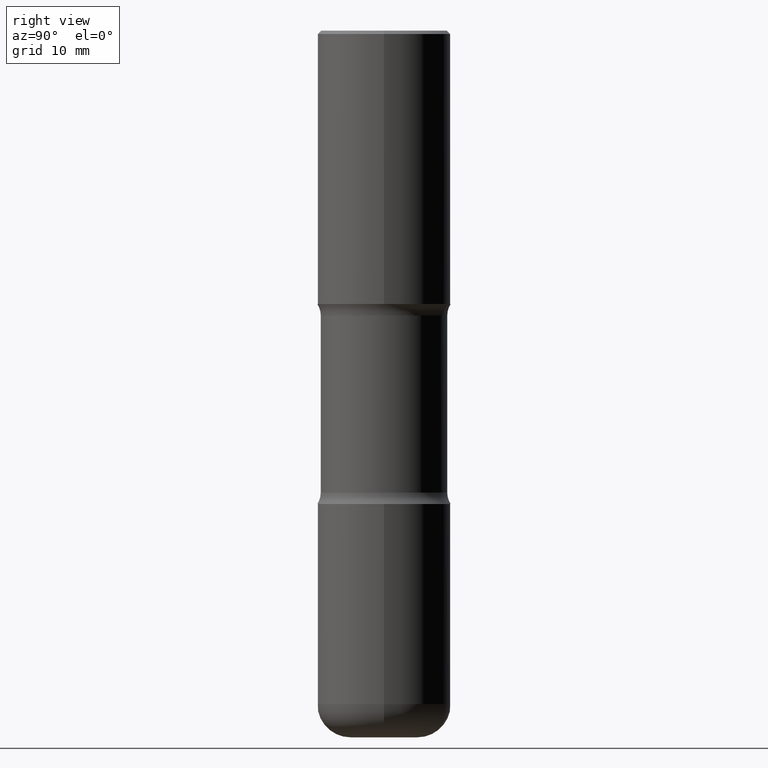
[diagram: clean part render]
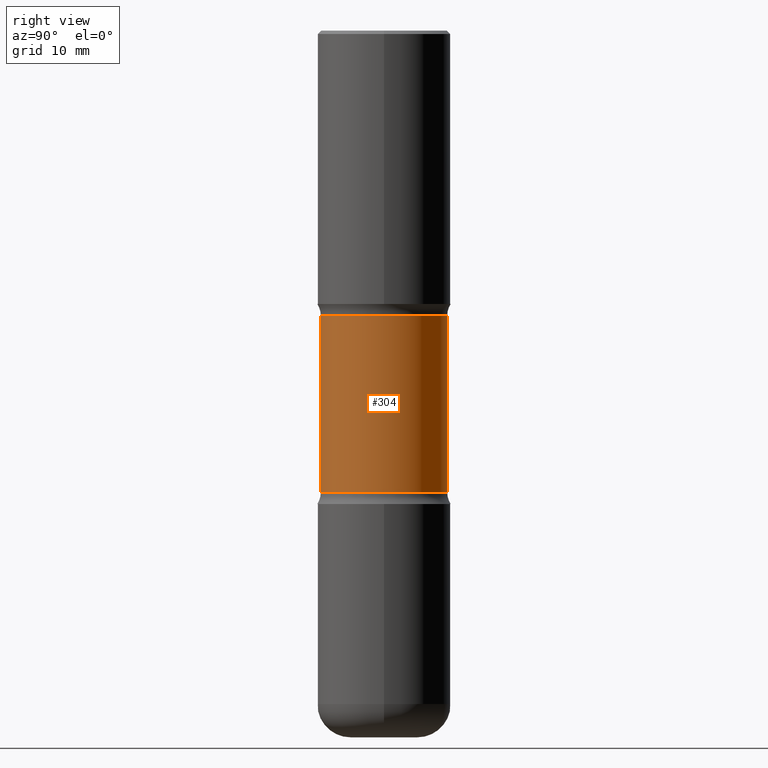
[diagram: same view with one face highlighted and labeled with its STEP entity id]
A machine part, right view. The second image highlights one B-rep face of the part: STEP entity #304.
In plain terms, the highlighted cylindrical surface (partial cylindrical patch) has radius 9.4869 mm, axis along (0, -0, -1).
Its self-contained STEP definition (entity closure, byte-faithful):
#12 = EDGE_LOOP ( 'NONE', ( #240, #161, #22, #397 ) ) ;
#22 = ORIENTED_EDGE ( 'NONE', *, *, #38, .F. ) ;
#27 = DIRECTION ( 'NONE',  ( 2.497382066111305685E-29, -3.417138595909611452E-15, -1.000000000000000000 ) ) ;
#38 = EDGE_CURVE ( 'NONE', #111, #277, #447, .T. ) ;
#44 = CARTESIAN_POINT ( 'NONE',  ( 2.608136560115861621E-15, 0.3734999999999941700, -1.682231930840100809 ) ) ;
#66 = LINE ( 'NONE', #378, #390 ) ;
#90 = EDGE_CURVE ( 'NONE', #93, #111, #372, .T. ) ;
#93 = VERTEX_POINT ( 'NONE', #44 ) ;
#105 = VECTOR ( 'NONE', #389, 39.37007874015748143 ) ;
#110 = CARTESIAN_POINT ( 'NONE',  ( -2.631687031945092476E-15, -0.3735000000000094911, -2.727068069159900521 ) ) ;
#111 = VERTEX_POINT ( 'NONE', #294 ) ;
#150 = DIRECTION ( 'NONE',  ( 2.497382066111305685E-29, -3.417138595909611452E-15, -1.000000000000000000 ) ) ;
#161 = ORIENTED_EDGE ( 'NONE', *, *, #445, .T. ) ;
#205 = DIRECTION ( 'NONE',  ( 2.497382066111305685E-29, -3.417138595909611452E-15, -1.000000000000000000 ) ) ;
#218 = CARTESIAN_POINT ( 'NONE',  ( 2.608136560115922758E-15, 0.3734999999999855103, -4.173200000000001353 ) ) ;
#229 = CARTESIAN_POINT ( 'NONE',  ( 1.027696689415007474E-28, -1.446820562349780459E-14, -4.173200000000000465 ) ) ;
#230 = AXIS2_PLACEMENT_3D ( 'NONE', #229, #150, #539 ) ;
#240 = ORIENTED_EDGE ( 'NONE', *, *, #549, .T. ) ;
#277 = VERTEX_POINT ( 'NONE', #110 ) ;
#284 = CARTESIAN_POINT ( 'NONE',  ( -2.631687031945121663E-15, -0.3735000000000060494, -1.682231930840098144 ) ) ;
#294 = CARTESIAN_POINT ( 'NONE',  ( 2.608136560115886471E-15, 0.3734999999999905063, -2.727068069159902741 ) ) ;
#304 = ADVANCED_FACE ( 'NONE', ( #441 ), #439, .T. ) ;
#322 = DIRECTION ( 'NONE',  ( 6.982962677686265922E-15, 1.000000000000000000, -3.657092360996335267E-15 ) ) ;
#371 = CARTESIAN_POINT ( 'NONE',  ( 4.056067910974230799E-29, -5.956222493193065901E-15, -1.682231930840099476 ) ) ;
#372 = LINE ( 'NONE', #218, #105 ) ;
#378 = CARTESIAN_POINT ( 'NONE',  ( -2.562396002167563676E-15, -0.3735000000000144871, -4.173199999999998688 ) ) ;
#389 = DIRECTION ( 'NONE',  ( 2.497382066111305685E-29, -3.417138595909611452E-15, -1.000000000000000000 ) ) ;
#390 = VECTOR ( 'NONE', #205, 39.37007874015748143 ) ;
#397 = ORIENTED_EDGE ( 'NONE', *, *, #90, .F. ) ;
#416 = DIRECTION ( 'NONE',  ( 2.497382066111305685E-29, -3.417138595909611452E-15, -1.000000000000000000 ) ) ;
#439 = CYLINDRICAL_SURFACE ( 'NONE', #230, 0.3734999999999999987 ) ;
#441 = FACE_OUTER_BOUND ( 'NONE', #12, .T. ) ;
#445 = EDGE_CURVE ( 'NONE', #555, #277, #66, .T. ) ;
#447 = CIRCLE ( 'NONE', #519, 0.3734999999999999987 ) ;
#463 = AXIS2_PLACEMENT_3D ( 'NONE', #371, #27, #322 ) ;
#464 = DIRECTION ( 'NONE',  ( 6.982962677686265922E-15, 1.000000000000000000, -2.925673888797068924E-15 ) ) ;
#478 = CIRCLE ( 'NONE', #463, 0.3735000000000001097 ) ;
#500 = CARTESIAN_POINT ( 'NONE',  ( 6.665422944839096374E-29, -9.526572387846816848E-15, -2.727068069159901409 ) ) ;
#519 = AXIS2_PLACEMENT_3D ( 'NONE', #500, #416, #464 ) ;
#539 = DIRECTION ( 'NONE',  ( 6.982962677686265922E-15, 1.000000000000000000, -2.925673888797068924E-15 ) ) ;
#549 = EDGE_CURVE ( 'NONE', #93, #555, #478, .T. ) ;
#555 = VERTEX_POINT ( 'NONE', #284 ) ;